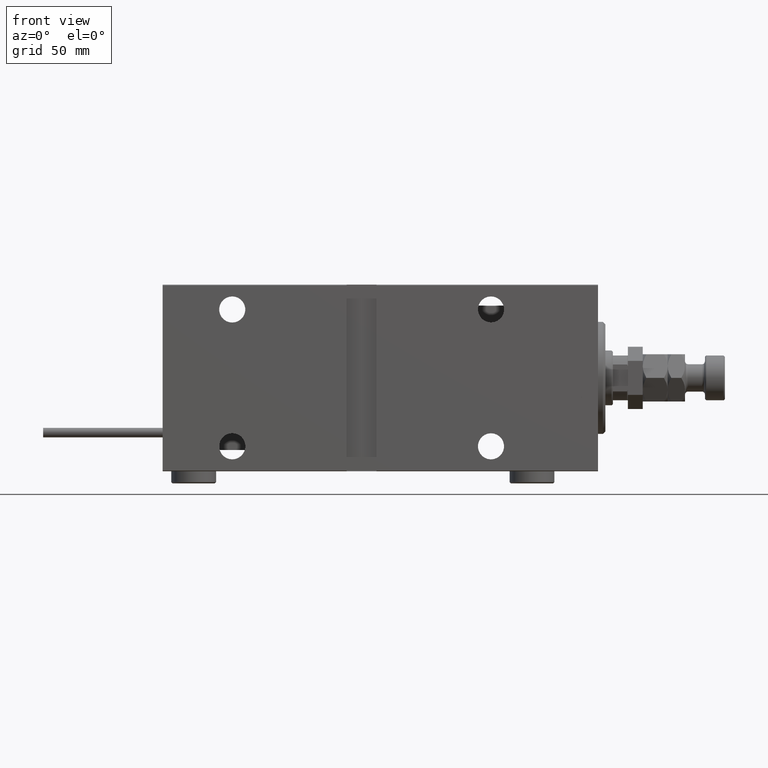
[diagram: clean part render]
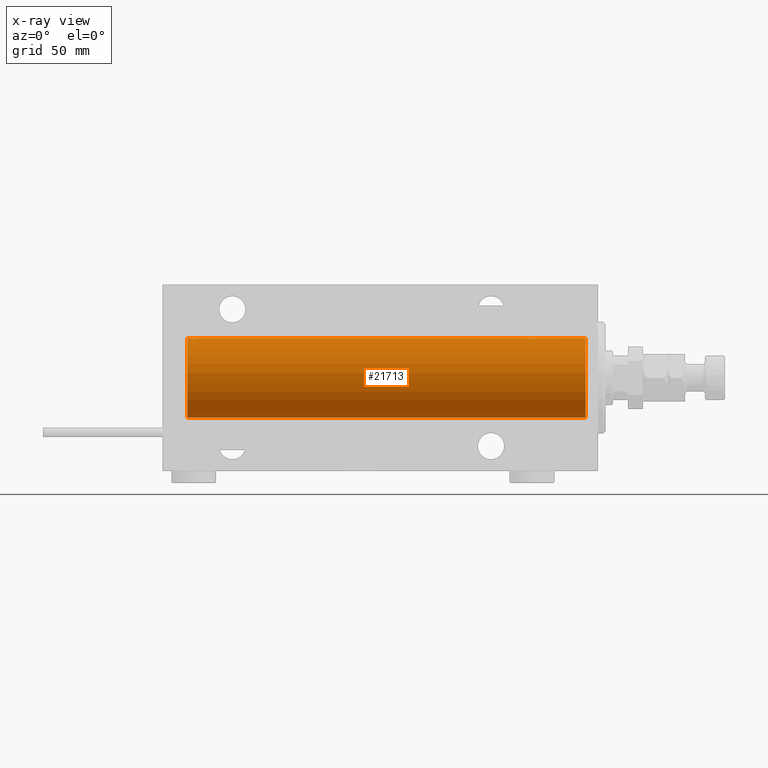
[diagram: x-ray — body ghosted, one internal face saturated and labeled with its STEP entity id]
A machine part, front view, then the same camera in x-ray: the body is ghosted and one INTERNAL B-rep face — a face not visible from any outside direction — is saturated and labeled: STEP entity #21713.
In plain terms, the highlighted cylindrical surface (partial cylindrical patch) has radius 16 mm, axis along (1, 0, -0).
Its self-contained STEP definition (entity closure, byte-faithful):
#667 = CARTESIAN_POINT ( 'NONE',  ( 164.4999999999999716, -5.805030688536432137E-15, 16.00000000000000000 ) ) ;
#976 = CARTESIAN_POINT ( 'NONE',  ( 24.60216273501104567, 0.6445079780200539954, 15.98747331501412461 ) ) ;
#1251 = CARTESIAN_POINT ( 'NONE',  ( 24.90998471899876066, 1.220169175415113827, 15.95377581882983442 ) ) ;
#2602 = CARTESIAN_POINT ( 'NONE',  ( 161.2803234255772225, 1.590393755195991243, 15.92092783521423627 ) ) ;
#2668 = FACE_OUTER_BOUND ( 'NONE', #26610, .T. ) ;
#2687 = LINE ( 'NONE', #19014, #35952 ) ;
#3169 = EDGE_CURVE ( 'NONE', #36807, #24185, #26392, .T. ) ;
#3662 = CARTESIAN_POINT ( 'NONE',  ( 160.5643094707386922, 0.5198215460038647651, 15.99206840425679310 ) ) ;
#3859 = VERTEX_POINT ( 'NONE', #13626 ) ;
#4113 = DIRECTION ( 'NONE',  ( -1.000000000000000000, -0.000000000000000000, -0.000000000000000000 ) ) ;
#4996 = CARTESIAN_POINT ( 'NONE',  ( 24.49999999999999289, 0.1305944228192297274, 15.99999999999999645 ) ) ;
#6025 = VERTEX_POINT ( 'NONE', #6237 ) ;
#6213 = B_SPLINE_CURVE_WITH_KNOTS ( 'NONE', 3,
 ( #11682, #28002, #47801, #19443, #30971, #44324, #19191, #35503, #31225, #7658, #51822, #51305, #7141, #23999, #11160, #14635, #31749, #19708, #10895, #2602, #47545, #40316, #52084, #6616, #47292, #22948, #3662, #26966, #34976, #27481 ),
 .UNSPECIFIED., .F., .F.,
 ( 4, 2, 2, 2, 2, 2, 2, 2, 2, 2, 2, 2, 2, 2, 4 ),
 ( 5.640563159279031920E-18, 0.0003911894522871212868, 0.0007823789045742369358, 0.001173568356861352585, 0.001564757809148468234, 0.002347136713722699532, 0.003129515618296930830, 0.003520705070584046695, 0.003911894522871162995, 0.004303083975158277993, 0.004694273427445393859, 0.005085462879732509725, 0.005476652332019624723, 0.005867841784306740589, 0.006259031236593856455 ),
 .UNSPECIFIED. ) ;
#6237 = CARTESIAN_POINT ( 'NONE',  ( 160.4999999999999716, -2.738767290746308786E-23, 16.00000000000000000 ) ) ;
#6398 = ORIENTED_EDGE ( 'NONE', *, *, #3169, .T. ) ;
#6616 = CARTESIAN_POINT ( 'NONE',  ( 160.7651732932504274, 1.003662148334358406, 15.96885838080210362 ) ) ;
#7058 = DIRECTION ( 'NONE',  ( 0.000000000000000000, 0.000000000000000000, 1.000000000000000000 ) ) ;
#7141 = CARTESIAN_POINT ( 'NONE',  ( 162.7619146276225308, 1.999903730784151401, 15.87451999516785506 ) ) ;
#7393 = EDGE_CURVE ( 'NONE', #6025, #15093, #2687, .T. ) ;
#7658 = CARTESIAN_POINT ( 'NONE',  ( 163.7295611173978784, 1.598790766515151063, 15.92099550861380486 ) ) ;
#8744 = CARTESIAN_POINT ( 'NONE',  ( 24.51309075167874596, 0.2632563459770819736, 15.99834873924246459 ) ) ;
#8998 = CARTESIAN_POINT ( 'NONE',  ( 25.98086902289887234, 1.935876924222074358, 15.88247600692093187 ) ) ;
#9531 = CARTESIAN_POINT ( 'NONE',  ( 28.43611326682063378, 0.5181437283162068086, 15.99211983514074298 ) ) ;
#9795 = CARTESIAN_POINT ( 'NONE',  ( 24.99262839687570903, 1.321075116345881595, 15.94564302722883298 ) ) ;
#10895 = CARTESIAN_POINT ( 'NONE',  ( 161.4968875296495696, 1.735145127817734556, 15.90580292899658410 ) ) ;
#11160 = CARTESIAN_POINT ( 'NONE',  ( 162.2374841699209469, 1.987008272775783402, 15.87616016863256618 ) ) ;
#11682 = CARTESIAN_POINT ( 'NONE',  ( 164.4999999999999716, -5.805030688536432137E-15, 16.00000000000000000 ) ) ;
#12204 = B_SPLINE_CURVE_WITH_KNOTS ( 'NONE', 3,
 ( #25072, #46181, #13017, #9531, #38163, #42184, #46448, #29343, #21586, #30132, #12749, #49408, #29858, #45653, #33348, #8998, #17825, #21319, #17563, #25335, #37895, #9795, #1251, #25862, #41392, #976, #45394, #8744, #4996, #13277 ),
 .UNSPECIFIED., .F., .F.,
 ( 4, 2, 2, 2, 2, 2, 2, 2, 2, 2, 2, 2, 2, 2, 4 ),
 ( 1.745049934674283425E-18, 0.0003911894522871204737, 0.0007823789045742392126, 0.001173568356861357789, 0.001564757809148476691, 0.002347136713722706037, 0.003129515618296936034, 0.003520705070584051466, 0.003911894522871166464, 0.004303083975158282330, 0.004694273427445396461, 0.005085462879732512327, 0.005476652332019627326, 0.005867841784306743191, 0.006259031236593858190 ),
 .UNSPECIFIED. ) ;
#12749 = CARTESIAN_POINT ( 'NONE',  ( 27.50659181559580446, 1.747750603376297729, 15.90457341008072056 ) ) ;
#13017 = CARTESIAN_POINT ( 'NONE',  ( 28.48700524008413382, 0.2623312429553315561, 15.99836091803360105 ) ) ;
#13277 = CARTESIAN_POINT ( 'NONE',  ( 24.50000000000000000, -2.739635037742051899E-23, 16.00000000000000000 ) ) ;
#13626 = CARTESIAN_POINT ( 'NONE',  ( 165.0000000000000000, 0.000000000000000000, 16.00000000000000000 ) ) ;
#13653 = VERTEX_POINT ( 'NONE', #32359 ) ;
#13958 = DIRECTION ( 'NONE',  ( -1.000000000000000000, -0.000000000000000000, -0.000000000000000000 ) ) ;
#14325 = EDGE_CURVE ( 'NONE', #3859, #44208, #20722, .T. ) ;
#14356 = ORIENTED_EDGE ( 'NONE', *, *, #25641, .T. ) ;
#14416 = ORIENTED_EDGE ( 'NONE', *, *, #18333, .T. ) ;
#14635 = CARTESIAN_POINT ( 'NONE',  ( 161.9808690228987871, 1.935876924222065476, 15.88247600692093187 ) ) ;
#15058 = EDGE_CURVE ( 'NONE', #44208, #24185, #19478, .T. ) ;
#15093 = VERTEX_POINT ( 'NONE', #39559 ) ;
#15376 = CARTESIAN_POINT ( 'NONE',  ( 165.0000000000000000, 1.959434878635765131E-15, -16.00000000000000000 ) ) ;
#16471 = AXIS2_PLACEMENT_3D ( 'NONE', #20403, #31915, #20144 ) ;
#16933 = CARTESIAN_POINT ( 'NONE',  ( 165.0000000000000000, 0.000000000000000000, 16.00000000000000000 ) ) ;
#17563 = CARTESIAN_POINT ( 'NONE',  ( 25.49688752964961225, 1.735145127817741439, 15.90580292899658410 ) ) ;
#17825 = CARTESIAN_POINT ( 'NONE',  ( 25.85613031966986952, 1.898058445420883311, 15.88709929148890510 ) ) ;
#18030 = DIRECTION ( 'NONE',  ( -1.000000000000000000, -0.000000000000000000, -0.000000000000000000 ) ) ;
#18312 = CARTESIAN_POINT ( 'NONE',  ( 5.000000000000004441, 0.000000000000000000, 0.000000000000000000 ) ) ;
#18333 = EDGE_CURVE ( 'NONE', #13653, #36807, #40769, .T. ) ;
#19014 = CARTESIAN_POINT ( 'NONE',  ( 165.0000000000000000, 0.000000000000000000, 16.00000000000000000 ) ) ;
#19044 = LINE ( 'NONE', #27074, #24699 ) ;
#19191 = CARTESIAN_POINT ( 'NONE',  ( 164.2356809849825936, 1.002241074716290425, 15.96895041604535770 ) ) ;
#19197 = ORIENTED_EDGE ( 'NONE', *, *, #20016, .T. ) ;
#19443 = CARTESIAN_POINT ( 'NONE',  ( 164.4361132668205414, 0.5181437283162098062, 15.99211983514074298 ) ) ;
#19478 = LINE ( 'NONE', #48107, #48932 ) ;
#19708 = CARTESIAN_POINT ( 'NONE',  ( 161.6138224294272732, 1.797743958659255181, 15.89876304682111652 ) ) ;
#20016 = EDGE_CURVE ( 'NONE', #52072, #6025, #6213, .T. ) ;
#20144 = DIRECTION ( 'NONE',  ( 0.000000000000000000, 0.000000000000000000, 1.000000000000000000 ) ) ;
#20403 = CARTESIAN_POINT ( 'NONE',  ( 165.0000000000000000, 0.000000000000000000, 0.000000000000000000 ) ) ;
#20722 = CIRCLE ( 'NONE', #16471, 16.00000000000000000 ) ;
#21319 = CARTESIAN_POINT ( 'NONE',  ( 25.61382242942729803, 1.797743958659254515, 15.89876304682112007 ) ) ;
#21586 = CARTESIAN_POINT ( 'NONE',  ( 28.00610712468246177, 1.322357532253821910, 15.94553003295878391 ) ) ;
#21713 = ADVANCED_FACE ( 'NONE', ( #2668 ), #31290, .F. ) ;
#22948 = CARTESIAN_POINT ( 'NONE',  ( 160.6021627350110634, 0.6445079780200521080, 15.98747331501412461 ) ) ;
#23999 = CARTESIAN_POINT ( 'NONE',  ( 162.3701469164949742, 2.000047931387135325, 15.87450182760079898 ) ) ;
#24185 = VERTEX_POINT ( 'NONE', #44197 ) ;
#24250 = ORIENTED_EDGE ( 'NONE', *, *, #27932, .T. ) ;
#24699 = VECTOR ( 'NONE', #13958, 1000.000000000000000 ) ;
#25072 = CARTESIAN_POINT ( 'NONE',  ( 28.49999999999999645, -1.207828523974853969E-15, 16.00000000000000000 ) ) ;
#25335 = CARTESIAN_POINT ( 'NONE',  ( 25.28032342557723311, 1.590393755196000347, 15.92092783521424337 ) ) ;
#25641 = EDGE_CURVE ( 'NONE', #15093, #13653, #12204, .T. ) ;
#25862 = CARTESIAN_POINT ( 'NONE',  ( 24.76517329325045225, 1.003662148334361959, 15.96885838080210007 ) ) ;
#26392 = CIRCLE ( 'NONE', #36630, 16.00000000000000000 ) ;
#26610 = EDGE_LOOP ( 'NONE', ( #34315, #32410, #24250, #19197, #44277, #14356, #14416, #6398 ) ) ;
#26966 = CARTESIAN_POINT ( 'NONE',  ( 160.5130907516787602, 0.2632563459770754233, 15.99834873924246459 ) ) ;
#27074 = CARTESIAN_POINT ( 'NONE',  ( 165.0000000000000000, 0.000000000000000000, 16.00000000000000000 ) ) ;
#27481 = CARTESIAN_POINT ( 'NONE',  ( 160.4999999999999716, -2.738767290746308786E-23, 16.00000000000000000 ) ) ;
#27932 = EDGE_CURVE ( 'NONE', #3859, #52072, #19044, .T. ) ;
#28002 = CARTESIAN_POINT ( 'NONE',  ( 164.4999999999999716, 0.1322838750249260009, 16.00000000000000000 ) ) ;
#29343 = CARTESIAN_POINT ( 'NONE',  ( 28.09051504852099512, 1.219564485341767091, 15.95382484008323409 ) ) ;
#29858 = CARTESIAN_POINT ( 'NONE',  ( 26.76191462762254858, 1.999903730784154066, 15.87451999516785861 ) ) ;
#30132 = CARTESIAN_POINT ( 'NONE',  ( 27.72956111739783580, 1.598790766515148620, 15.92099550861380131 ) ) ;
#30971 = CARTESIAN_POINT ( 'NONE',  ( 164.3975887005559287, 0.6452446332038104249, 15.98744362947834929 ) ) ;
#31035 = DIRECTION ( 'NONE',  ( 0.000000000000000000, 0.000000000000000000, 1.000000000000000000 ) ) ;
#31225 = CARTESIAN_POINT ( 'NONE',  ( 164.0061071246824440, 1.322357532253825241, 15.94553003295877325 ) ) ;
#31290 = CYLINDRICAL_SURFACE ( 'NONE', #39909, 16.00000000000000000 ) ;
#31749 = CARTESIAN_POINT ( 'NONE',  ( 161.8561303196698304, 1.898058445420882867, 15.88709929148890687 ) ) ;
#31915 = DIRECTION ( 'NONE',  ( -1.000000000000000000, 0.000000000000000000, 0.000000000000000000 ) ) ;
#32359 = CARTESIAN_POINT ( 'NONE',  ( 24.50000000000000000, -2.739635037742051899E-23, 16.00000000000000000 ) ) ;
#32410 = ORIENTED_EDGE ( 'NONE', *, *, #14325, .F. ) ;
#33348 = CARTESIAN_POINT ( 'NONE',  ( 26.23748416992101085, 1.987008272775788731, 15.87616016863256618 ) ) ;
#34315 = ORIENTED_EDGE ( 'NONE', *, *, #15058, .F. ) ;
#34976 = CARTESIAN_POINT ( 'NONE',  ( 160.5000000000000000, 0.1305944228192312262, 16.00000000000000355 ) ) ;
#35041 = CARTESIAN_POINT ( 'NONE',  ( 165.0000000000000000, 0.000000000000000000, 0.000000000000000000 ) ) ;
#35503 = CARTESIAN_POINT ( 'NONE',  ( 164.0905150485209560, 1.219564485341775528, 15.95382484008322699 ) ) ;
#35796 = DIRECTION ( 'NONE',  ( -1.000000000000000000, -0.000000000000000000, -0.000000000000000000 ) ) ;
#35952 = VECTOR ( 'NONE', #18030, 1000.000000000000000 ) ;
#36630 = AXIS2_PLACEMENT_3D ( 'NONE', #18312, #38641, #7058 ) ;
#36807 = VERTEX_POINT ( 'NONE', #39578 ) ;
#37895 = CARTESIAN_POINT ( 'NONE',  ( 25.17924175171067702, 1.507649250492130388, 15.92908549642226745 ) ) ;
#38163 = CARTESIAN_POINT ( 'NONE',  ( 28.39758870055591444, 0.6452446332038146437, 15.98744362947834574 ) ) ;
#38641 = DIRECTION ( 'NONE',  ( -1.000000000000000000, 0.000000000000000000, 0.000000000000000000 ) ) ;
#39559 = CARTESIAN_POINT ( 'NONE',  ( 28.49999999999999645, -1.207828523974853969E-15, 16.00000000000000000 ) ) ;
#39578 = CARTESIAN_POINT ( 'NONE',  ( 5.000000000000004441, 0.000000000000000000, 16.00000000000000000 ) ) ;
#39909 = AXIS2_PLACEMENT_3D ( 'NONE', #35041, #47095, #31035 ) ;
#40316 = CARTESIAN_POINT ( 'NONE',  ( 160.9926283968756593, 1.321075116345874489, 15.94564302722883298 ) ) ;
#40769 = LINE ( 'NONE', #16933, #51746 ) ;
#41392 = CARTESIAN_POINT ( 'NONE',  ( 24.70250071394960045, 0.8866640484200088990, 15.97587307151817448 ) ) ;
#42184 = CARTESIAN_POINT ( 'NONE',  ( 28.29713414748220046, 0.8874076679346754037, 15.97583181162460697 ) ) ;
#44197 = CARTESIAN_POINT ( 'NONE',  ( 5.000000000000004441, 1.959434878635765131E-15, -16.00000000000000000 ) ) ;
#44208 = VERTEX_POINT ( 'NONE', #15376 ) ;
#44277 = ORIENTED_EDGE ( 'NONE', *, *, #7393, .T. ) ;
#44324 = CARTESIAN_POINT ( 'NONE',  ( 164.2971341474821259, 0.8874076679346705188, 15.97583181162461052 ) ) ;
#45394 = CARTESIAN_POINT ( 'NONE',  ( 24.56430947073869930, 0.5198215460038717595, 15.99206840425678955 ) ) ;
#45653 = CARTESIAN_POINT ( 'NONE',  ( 26.37014691649501685, 2.000047931387139322, 15.87450182760079187 ) ) ;
#46181 = CARTESIAN_POINT ( 'NONE',  ( 28.49999999999998579, 0.1322838750249257511, 16.00000000000000000 ) ) ;
#46448 = CARTESIAN_POINT ( 'NONE',  ( 28.23568098498261492, 1.002241074716280655, 15.96895041604536480 ) ) ;
#47095 = DIRECTION ( 'NONE',  ( -1.000000000000000000, -0.000000000000000000, -0.000000000000000000 ) ) ;
#47292 = CARTESIAN_POINT ( 'NONE',  ( 160.7025007139496324, 0.8866640484200066785, 15.97587307151817804 ) ) ;
#47545 = CARTESIAN_POINT ( 'NONE',  ( 161.1792417517106628, 1.507649250492124393, 15.92908549642226745 ) ) ;
#47801 = CARTESIAN_POINT ( 'NONE',  ( 164.4870052400841303, 0.2623312429553350533, 15.99836091803360105 ) ) ;
#48107 = CARTESIAN_POINT ( 'NONE',  ( 165.0000000000000000, 1.959434878635765131E-15, -16.00000000000000000 ) ) ;
#48932 = VECTOR ( 'NONE', #35796, 1000.000000000000000 ) ;
#49408 = CARTESIAN_POINT ( 'NONE',  ( 27.02531756459403667, 1.947280337074160927, 15.88137861827786779 ) ) ;
#51305 = CARTESIAN_POINT ( 'NONE',  ( 163.0253175645940757, 1.947280337074153156, 15.88137861827787134 ) ) ;
#51746 = VECTOR ( 'NONE', #4113, 1000.000000000000000 ) ;
#51822 = CARTESIAN_POINT ( 'NONE',  ( 163.5065918155957831, 1.747750603376286627, 15.90457341008072412 ) ) ;
#52072 = VERTEX_POINT ( 'NONE', #667 ) ;
#52084 = CARTESIAN_POINT ( 'NONE',  ( 160.9099847189987429, 1.220169175415112273, 15.95377581882983797 ) ) ;